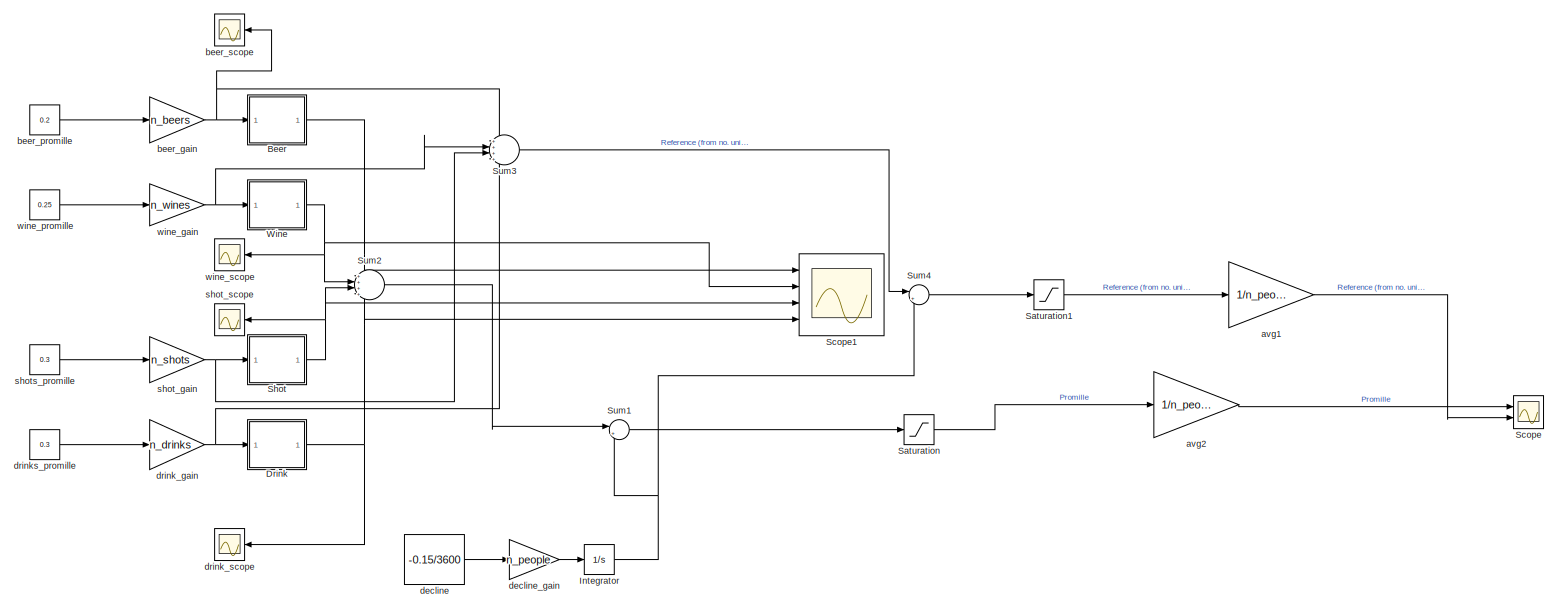
[diagram: root canvas - part 1/1, most of the canvas]
MODEL slx_59eb9d6bf667
KIND model
CONFIG AbsTol = auto
CONFIG EnableMultiTasking = off
CONFIG FixedStep = auto
CONFIG MaxStep = auto
CONFIG MinStep = auto
CONFIG RelTol = 1e-3
CONFIG SampleTimeConstraint = Unconstrained
CONFIG Solver = VariableStepAuto
CONFIG SolverName = VariableStepAuto
CONFIG StartTime = 0.0
CONFIG StopTime = 1200
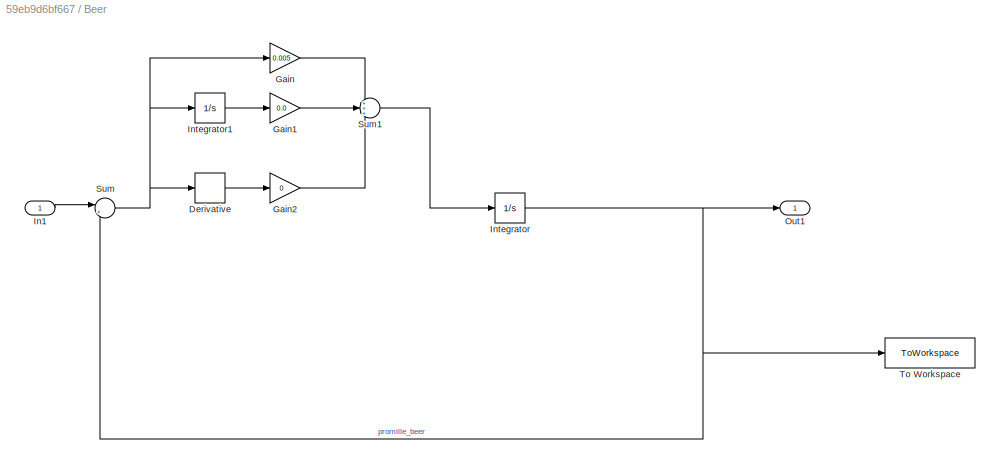
BLOCK [SubSystem] Beer
  Ports = [1, 1]
  RequestExecContextInheritance = off
BLOCK [Derivative] Beer/Derivative
BLOCK [Gain] Beer/Gain
  Gain = 0.005
BLOCK [Gain] Beer/Gain1
  Gain = 0.0
BLOCK [Gain] Beer/Gain2
  Gain = 0
BLOCK [Inport] Beer/In1
BLOCK [Integrator] Beer/Integrator
  InitialCondition = promille_beer
  Ports = [1, 1]
BLOCK [Integrator] Beer/Integrator1
  Ports = [1, 1]
BLOCK [Outport] Beer/Out1
BLOCK [Sum] Beer/Sum
  Inputs = |+-
  Ports = [2, 1]
BLOCK [Sum] Beer/Sum1
  Inputs = +++
  Ports = [3, 1]
BLOCK [ToWorkspace] Beer/To Workspace
  FixptAsFi = on
  MaxDataPoints = 1
  Ports = [1]
  SampleTime = -1
  SaveFormat = Timeseries
  VariableName = beer_promille
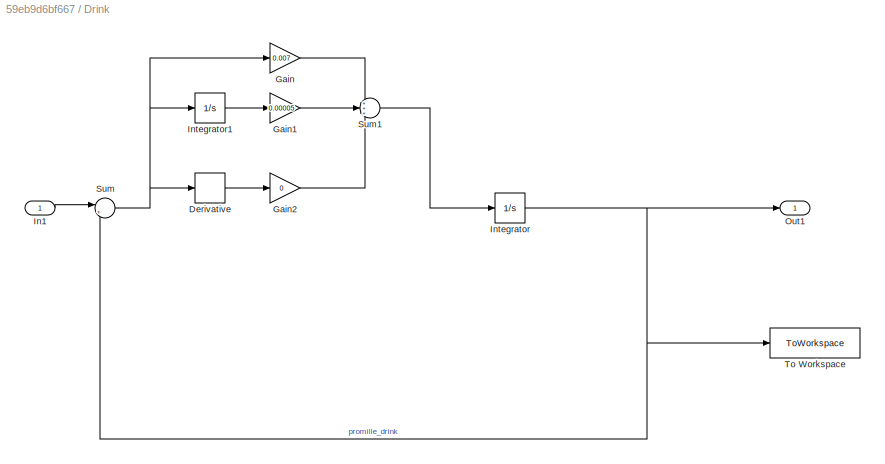
BLOCK [SubSystem] Drink
  Ports = [1, 1]
  RequestExecContextInheritance = off
BLOCK [Derivative] Drink/Derivative
BLOCK [Gain] Drink/Gain
  Gain = 0.007
BLOCK [Gain] Drink/Gain1
  Gain = 0.00005
BLOCK [Gain] Drink/Gain2
  Gain = 0
BLOCK [Inport] Drink/In1
BLOCK [Integrator] Drink/Integrator
  InitialCondition = promille_drink
  Ports = [1, 1]
BLOCK [Integrator] Drink/Integrator1
  Ports = [1, 1]
BLOCK [Outport] Drink/Out1
BLOCK [Sum] Drink/Sum
  Inputs = |+-
  Ports = [2, 1]
BLOCK [Sum] Drink/Sum1
  Inputs = +++
  Ports = [3, 1]
BLOCK [ToWorkspace] Drink/To Workspace
  FixptAsFi = on
  MaxDataPoints = 1
  Ports = [1]
  SampleTime = -1
  SaveFormat = Timeseries
  VariableName = drink_promille
BLOCK [Integrator] Integrator
  Ports = [1, 1]
BLOCK [Saturate] Saturation
  LowerLimit = 0
  UpperLimit = inf
BLOCK [Saturate] Saturation1
  LowerLimit = 0
  UpperLimit = inf
BLOCK [Scope] Scope
  Floating = off
  NumInputPorts = 2
  Ports = [2]
  ScopeSpecificationString = Simulink.scopes.TimeScopeBlockCfg('CurrentConfiguration', extmgr.ConfigurationSet(extmgr.Configuration('Core','General UI',true,'FigureColor',[0.831372549019608 0.815686274509804 0.784313725490196]),extmgr.Configuration('Core','Source UI',true),extmgr.Configuration('Sources','WiredSimulink',true),extmgr.Configuration('Visuals','Time Domain',true,'SerializedDisplays',{struct('MinYLimReal','0','MaxY...<+1980ch>
BLOCK [Scope] Scope1
  Floating = off
  NumInputPorts = 4
  Ports = [4]
  ScopeSpecificationString = Simulink.scopes.TimeScopeBlockCfg('CurrentConfiguration', extmgr.ConfigurationSet(extmgr.Configuration('Core','General UI',true),extmgr.Configuration('Core','Source UI',true),extmgr.Configuration('Sources','WiredSimulink',true,'DataLoggingVariableName','ScopeData5'),extmgr.Configuration('Visuals','Time Domain',true,'SerializedDisplays',{struct('MinYLimReal','-0.64307','MaxYLimReal','5.78759','YLab...<+1414ch>
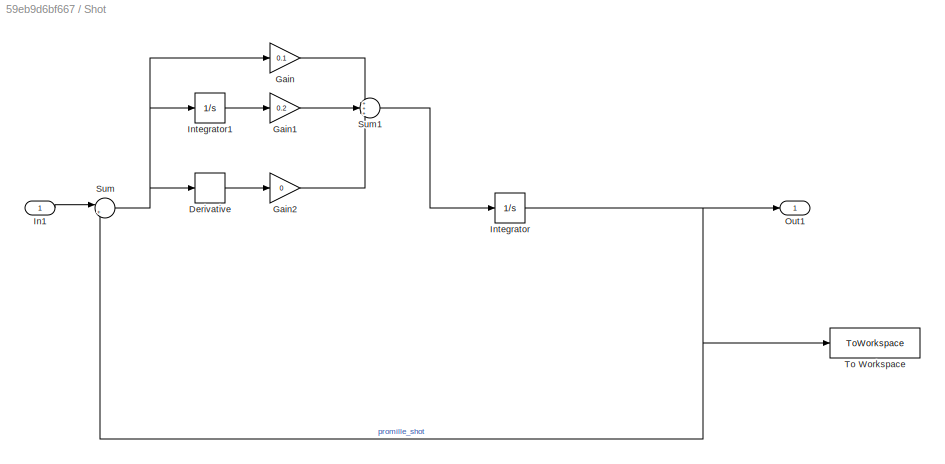
BLOCK [SubSystem] Shot
  Ports = [1, 1]
  RequestExecContextInheritance = off
BLOCK [Derivative] Shot/Derivative
BLOCK [Gain] Shot/Gain
  Gain = 0.1
BLOCK [Gain] Shot/Gain1
  Gain = 0.2
BLOCK [Gain] Shot/Gain2
  Gain = 0
BLOCK [Inport] Shot/In1
BLOCK [Integrator] Shot/Integrator
  InitialCondition = promille_shot
  Ports = [1, 1]
BLOCK [Integrator] Shot/Integrator1
  Ports = [1, 1]
BLOCK [Outport] Shot/Out1
BLOCK [Sum] Shot/Sum
  Inputs = |+-
  Ports = [2, 1]
BLOCK [Sum] Shot/Sum1
  Inputs = +++
  Ports = [3, 1]
BLOCK [ToWorkspace] Shot/To Workspace
  FixptAsFi = on
  MaxDataPoints = 1
  Ports = [1]
  SampleTime = -1
  SaveFormat = Timeseries
  VariableName = shot_promille
BLOCK [Sum] Sum1
  Inputs = |++
  Ports = [2, 1]
BLOCK [Sum] Sum2
  Inputs = ++++
  Ports = [4, 1]
BLOCK [Sum] Sum3
  Inputs = ++++
  Ports = [4, 1]
BLOCK [Sum] Sum4
  Inputs = |++
  Ports = [2, 1]
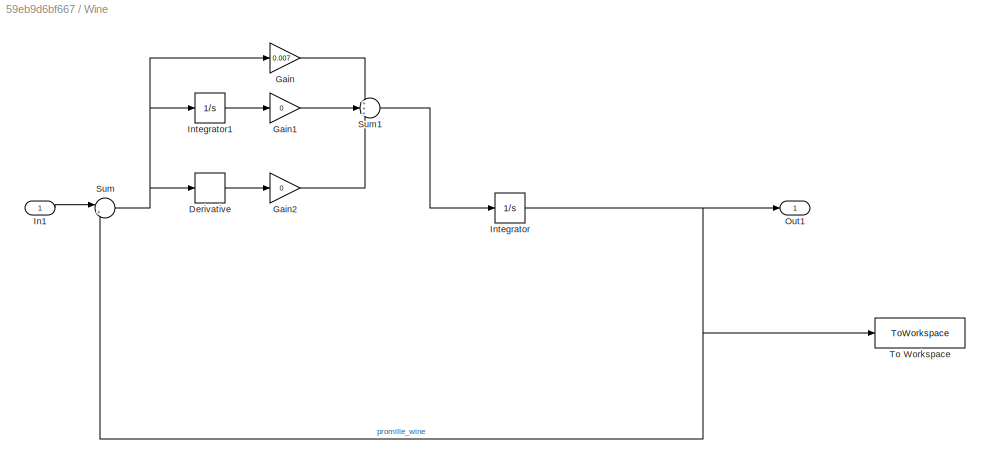
BLOCK [SubSystem] Wine
  Ports = [1, 1]
  RequestExecContextInheritance = off
BLOCK [Derivative] Wine/Derivative
BLOCK [Gain] Wine/Gain
  Gain = 0.007
BLOCK [Gain] Wine/Gain1
  Gain = 0
BLOCK [Gain] Wine/Gain2
  Gain = 0
BLOCK [Inport] Wine/In1
BLOCK [Integrator] Wine/Integrator
  InitialCondition = promille_wine
  Ports = [1, 1]
BLOCK [Integrator] Wine/Integrator1
  Ports = [1, 1]
BLOCK [Outport] Wine/Out1
BLOCK [Sum] Wine/Sum
  Inputs = |+-
  Ports = [2, 1]
BLOCK [Sum] Wine/Sum1
  Inputs = +++
  Ports = [3, 1]
BLOCK [ToWorkspace] Wine/To Workspace
  FixptAsFi = on
  MaxDataPoints = 1
  Ports = [1]
  SampleTime = -1
  SaveFormat = Timeseries
  VariableName = wine_promille
BLOCK [Gain] avg1
  Gain = 1/n_people
BLOCK [Gain] avg2
  Gain = 1/n_people
BLOCK [Gain] beer_gain
  Gain = n_beers
BLOCK [Constant] beer_promille
  Value = 0.2
BLOCK [Scope] beer_scope
  Floating = off
  NameLocation = top
  NumInputPorts = 1
  Ports = [1]
  ScopeSpecificationString = Simulink.scopes.TimeScopeBlockCfg('CurrentConfiguration', extmgr.ConfigurationSet(extmgr.Configuration('Core','General UI',true),extmgr.Configuration('Core','Source UI',true),extmgr.Configuration('Sources','WiredSimulink',true,'DataLoggingVariableName','ScopeData1'),extmgr.Configuration('Visuals','Time Domain',true,'SerializedDisplays',{struct('MinYLimReal','3.00000','MaxYLimReal','5.00000','YLabe...<+1431ch>
BLOCK [Constant] decline
  Value = -0.15/3600
BLOCK [Gain] decline_gain
  Gain = n_people
BLOCK [Gain] drink_gain
  Gain = n_drinks
BLOCK [Scope] drink_scope
  Floating = off
  NameLocation = top
  NumInputPorts = 1
  Ports = [1]
  ScopeSpecificationString = Simulink.scopes.TimeScopeBlockCfg('CurrentConfiguration', extmgr.ConfigurationSet(extmgr.Configuration('Core','General UI',true),extmgr.Configuration('Core','Source UI',true),extmgr.Configuration('Sources','WiredSimulink',true,'DataLoggingVariableName','ScopeData4'),extmgr.Configuration('Visuals','Time Domain',true,'SerializedDisplays',{struct('MinYLimReal','-0.53133','MaxYLimReal','4.78194','YLab...<+1393ch>
BLOCK [Constant] drinks_promille
  Value = 0.3
BLOCK [Gain] shot_gain
  Gain = n_shots
BLOCK [Scope] shot_scope
  Floating = off
  NameLocation = top
  NumInputPorts = 1
  Ports = [1]
  ScopeSpecificationString = Simulink.scopes.TimeScopeBlockCfg('CurrentConfiguration', extmgr.ConfigurationSet(extmgr.Configuration('Core','General UI',true),extmgr.Configuration('Core','Source UI',true),extmgr.Configuration('Sources','WiredSimulink',true,'DataLoggingVariableName','ScopeData3'),extmgr.Configuration('Visuals','Time Domain',true,'SerializedDisplays',{struct('MinYLimReal','-1.25','MaxYLimReal','11.25','YLabelRea...<+1379ch>
BLOCK [Constant] shots_promille
  Value = 0.3
BLOCK [Gain] wine_gain
  Gain = n_wines
BLOCK [Constant] wine_promille
  Value = 0.25
BLOCK [Scope] wine_scope
  Floating = off
  NameLocation = top
  NumInputPorts = 1
  Ports = [1]
  ScopeSpecificationString = Simulink.scopes.TimeScopeBlockCfg('CurrentConfiguration', extmgr.ConfigurationSet(extmgr.Configuration('Core','General UI',true),extmgr.Configuration('Core','Source UI',true),extmgr.Configuration('Sources','WiredSimulink',true,'DataLoggingVariableName','ScopeData2'),extmgr.Configuration('Visuals','Time Domain',true,'SerializedDisplays',{struct('MinYLimReal','-0.3125','MaxYLimReal','2.8125','YLabel...<+1386ch>
LINE Beer/Derivative:1 -> Beer/Gain2:1
LINE Beer/Gain1:1 -> Beer/Sum1:2
LINE Beer/Gain2:1 -> Beer/Sum1:3
LINE Beer/Gain:1 -> Beer/Sum1:1
LINE Beer/In1:1 -> Beer/Sum:1
LINE Beer/Integrator1:1 -> Beer/Gain1:1
NET Beer/Integrator:1 -> Beer/Out1:1, Beer/Sum:2, Beer/To Workspace:1
LINE Beer/Sum1:1 -> Beer/Integrator:1
NET Beer/Sum:1 -> Beer/Derivative:1, Beer/Gain:1, Beer/Integrator1:1
NET Beer:1 -> Scope1:1, Sum2:1
LINE Drink/Derivative:1 -> Drink/Gain2:1
LINE Drink/Gain1:1 -> Drink/Sum1:2
LINE Drink/Gain2:1 -> Drink/Sum1:3
LINE Drink/Gain:1 -> Drink/Sum1:1
LINE Drink/In1:1 -> Drink/Sum:1
LINE Drink/Integrator1:1 -> Drink/Gain1:1
NET Drink/Integrator:1 -> Drink/Out1:1, Drink/Sum:2, Drink/To Workspace:1
LINE Drink/Sum1:1 -> Drink/Integrator:1
NET Drink/Sum:1 -> Drink/Derivative:1, Drink/Gain:1, Drink/Integrator1:1
NET Drink:1 -> Scope1:4, Sum2:4, drink_scope:1
NET Integrator:1 -> Sum1:2, Sum4:2
LINE Saturation1:1 -> avg1:1
LINE Saturation:1 -> avg2:1
LINE Shot/Derivative:1 -> Shot/Gain2:1
LINE Shot/Gain1:1 -> Shot/Sum1:2
LINE Shot/Gain2:1 -> Shot/Sum1:3
LINE Shot/Gain:1 -> Shot/Sum1:1
LINE Shot/In1:1 -> Shot/Sum:1
LINE Shot/Integrator1:1 -> Shot/Gain1:1
NET Shot/Integrator:1 -> Shot/Out1:1, Shot/Sum:2, Shot/To Workspace:1
LINE Shot/Sum1:1 -> Shot/Integrator:1
NET Shot/Sum:1 -> Shot/Derivative:1, Shot/Gain:1, Shot/Integrator1:1
NET Shot:1 -> Scope1:3, Sum2:3, shot_scope:1
LINE Sum1:1 -> Saturation:1
LINE Sum2:1 -> Sum1:1
LINE Sum3:1 -> Sum4:1
LINE Sum4:1 -> Saturation1:1
LINE Wine/Derivative:1 -> Wine/Gain2:1
LINE Wine/Gain1:1 -> Wine/Sum1:2
LINE Wine/Gain2:1 -> Wine/Sum1:3
LINE Wine/Gain:1 -> Wine/Sum1:1
LINE Wine/In1:1 -> Wine/Sum:1
LINE Wine/Integrator1:1 -> Wine/Gain1:1
NET Wine/Integrator:1 -> Wine/Out1:1, Wine/Sum:2, Wine/To Workspace:1
LINE Wine/Sum1:1 -> Wine/Integrator:1
NET Wine/Sum:1 -> Wine/Derivative:1, Wine/Gain:1, Wine/Integrator1:1
NET Wine:1 -> Scope1:2, Sum2:2, wine_scope:1
LINE avg1:1 -> Scope:2
LINE avg2:1 -> Scope:1
NET beer_gain:1 -> Beer:1, Sum3:1, beer_scope:1
LINE beer_promille:1 -> beer_gain:1
LINE decline:1 -> decline_gain:1
LINE decline_gain:1 -> Integrator:1
NET drink_gain:1 -> Drink:1, Sum3:4
LINE drinks_promille:1 -> drink_gain:1
NET shot_gain:1 -> Shot:1, Sum3:3
LINE shots_promille:1 -> shot_gain:1
NET wine_gain:1 -> Sum3:2, Wine:1
LINE wine_promille:1 -> wine_gain:1
note: NET lines group one-source signal fan-out (src -> all destinations, sorted); 1:1 wires keep LINE
